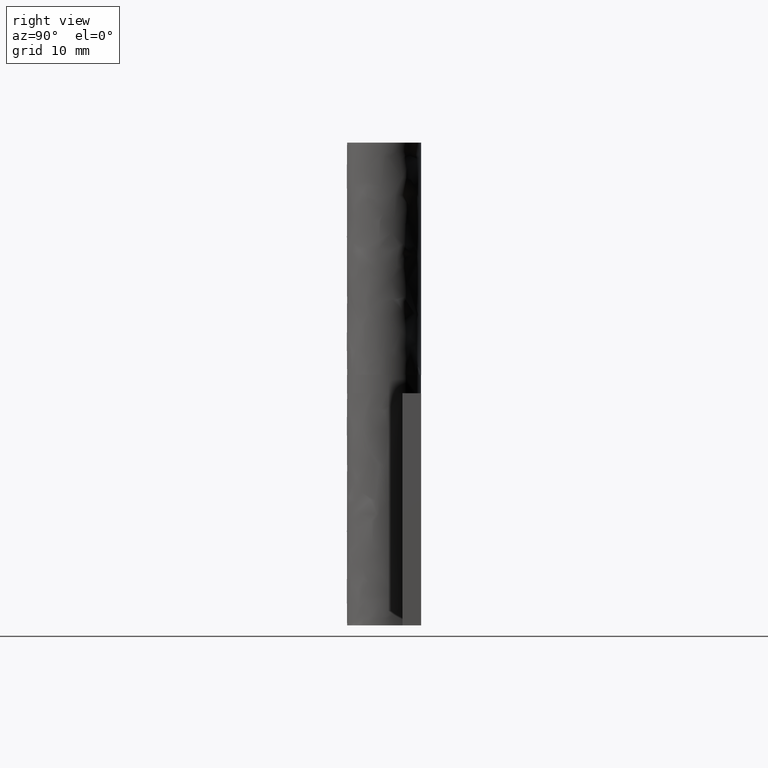
[diagram: clean part render]
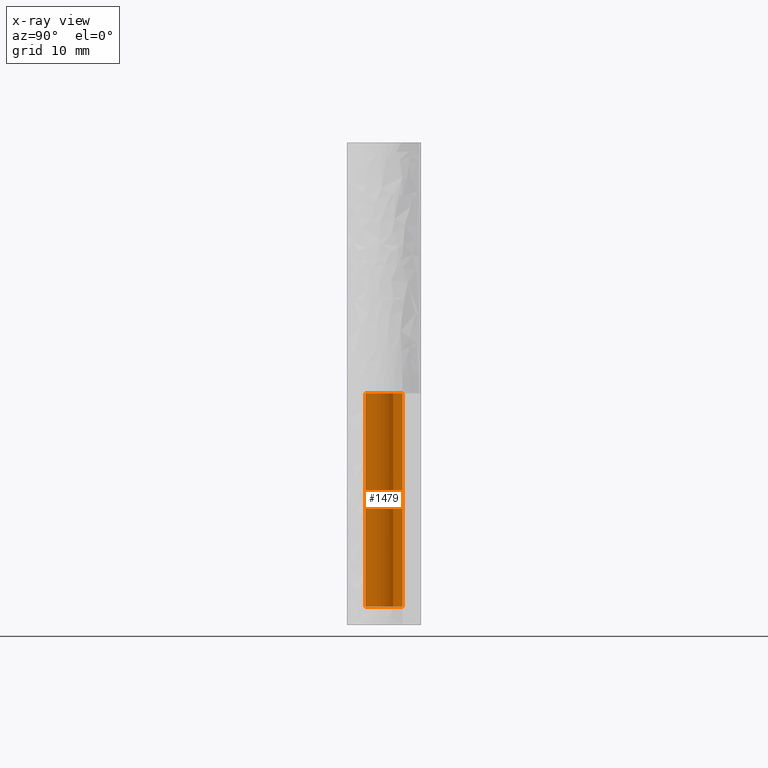
[diagram: x-ray — body ghosted, one internal face saturated and labeled with its STEP entity id]
A machine part, right view, then the same camera in x-ray: the body is ghosted and one INTERNAL B-rep face — a face not visible from any outside direction — is saturated and labeled: STEP entity #1479.
In plain terms, the highlighted face is a freeform B-spline surface patch.
Its self-contained STEP definition (entity closure, byte-faithful):
#1161=CARTESIAN_POINT('',(-0.000007999999994,3.0,3.0));
#1162=VERTEX_POINT('',#1161);
#1170=CARTESIAN_POINT('',(2.612342474189870,1.475000000000000,3.0));
#1171=VERTEX_POINT('',#1170);
#1172=CARTESIAN_POINT('',(-0.000007999999994,3.0,3.0));
#1173=CARTESIAN_POINT('',(-2.296276913923535,3.000000000000000,3.000000000000000));
#1174=CARTESIAN_POINT('',(-2.895914407743429,0.783406712755587,3.0));
#1175=CARTESIAN_POINT('',(-3.495551901563322,-1.433186574488824,3.000000000000000));
#1176=CARTESIAN_POINT('',(-1.512456346225413,-2.590849281606322,3.0));
#1177=CARTESIAN_POINT('',(0.470639209112498,-3.748511988723821,3.000000000000000));
#1178=CARTESIAN_POINT('',(2.105990282990719,-2.136532525387846,3.0));
#1179=CARTESIAN_POINT('',(3.741341356868943,-0.524553062051871,3.000000000000000));
#1180=CARTESIAN_POINT('',(2.612342474189870,1.474999999999998,3.0));
#1188=(BOUNDED_CURVE()B_SPLINE_CURVE(2,(#1172,#1173,#1174,#1175,#1176,#1177,#1178,#1179,#1180),.UNSPECIFIED.,.F.,.U.)B_SPLINE_CURVE_WITH_KNOTS((3,2,2,2,3),(0.0,0.250000000000000,0.500000000000000,0.750000000000000,1.0),.UNSPECIFIED.)CURVE()GEOMETRIC_REPRESENTATION_ITEM()RATIONAL_B_SPLINE_CURVE((1.0,0.794082983987986,1.0,0.794082983987986,1.0,0.794082983987986,1.0,0.794082983987986,1.0))REPRESENTATION_ITEM(''));
#1189=EDGE_CURVE('',#1162,#1171,#1188,.T.);
#1299=CARTESIAN_POINT('',(2.612342474189870,1.475000000000000,37.500000000000000));
#1300=VERTEX_POINT('',#1299);
#1306=CARTESIAN_POINT('',(-0.000007999999994,3.0,37.500000000000000));
#1307=VERTEX_POINT('',#1306);
#1308=CARTESIAN_POINT('',(2.612342474189869,1.475000000000000,37.500000000000000));
#1309=CARTESIAN_POINT('',(3.741341356868943,-0.524553062051868,37.500000000000000));
#1310=CARTESIAN_POINT('',(2.105990282990721,-2.136532525387845,37.500000000000000));
#1311=CARTESIAN_POINT('',(0.470639209112499,-3.748511988723822,37.500000000000000));
#1312=CARTESIAN_POINT('',(-1.512456346225414,-2.590849281606322,37.500000000000000));
#1313=CARTESIAN_POINT('',(-3.495551901563321,-1.433186574488824,37.500000000000000));
#1314=CARTESIAN_POINT('',(-2.895914407743430,0.783406712755585,37.500000000000000));
#1315=CARTESIAN_POINT('',(-2.296276913923536,3.000000000000000,37.500000000000000));
#1316=CARTESIAN_POINT('',(-0.000007999999994,3.0,37.500000000000000));
#1324=(BOUNDED_CURVE()B_SPLINE_CURVE(2,(#1308,#1309,#1310,#1311,#1312,#1313,#1314,#1315,#1316),.UNSPECIFIED.,.F.,.U.)B_SPLINE_CURVE_WITH_KNOTS((3,2,2,2,3),(0.0,0.250000000000000,0.500000000000000,0.750000000000000,1.0),.UNSPECIFIED.)CURVE()GEOMETRIC_REPRESENTATION_ITEM()RATIONAL_B_SPLINE_CURVE((1.0,0.794082983987986,1.0,0.794082983987986,1.0,0.794082983987986,1.0,0.794082983987986,1.0))REPRESENTATION_ITEM(''));
#1325=EDGE_CURVE('',#1300,#1307,#1324,.T.);
#1398=CARTESIAN_POINT('',(-0.000007999999994,3.0,37.500000000000000));
#1399=CARTESIAN_POINT('',(-0.000007999999994,3.0,3.0));
#1400=QUASI_UNIFORM_CURVE('',1,(#1398,#1399),.UNSPECIFIED.,.F.,.U.);
#1401=EDGE_CURVE('',#1307,#1162,#1400,.T.);
#1442=CARTESIAN_POINT('',(2.612342474189870,1.475000000000000,37.500000000000000));
#1443=CARTESIAN_POINT('',(2.612342474189870,1.475000000000000,3.0));
#1444=QUASI_UNIFORM_CURVE('',1,(#1442,#1443),.UNSPECIFIED.,.F.,.U.);
#1445=EDGE_CURVE('',#1300,#1171,#1444,.T.);
#1451=CARTESIAN_POINT('',(0.078522844923630,2.998971974926671,38.362500000000011));
#1452=CARTESIAN_POINT('',(0.078522844923630,2.998971974926671,2.115937500000001));
#1453=CARTESIAN_POINT('',(-3.581158914601225,3.094804114449778,38.362500000000004));
#1454=CARTESIAN_POINT('',(-3.581158914601225,3.094804114449778,2.115937500000002));
#1455=CARTESIAN_POINT('',(-2.955934123562022,-0.512348272216815,38.362500000000011));
#1456=CARTESIAN_POINT('',(-2.955934123562022,-0.512348272216815,2.115937500000001));
#1457=CARTESIAN_POINT('',(-2.330709332522819,-4.119500658883408,38.362500000000004));
#1458=CARTESIAN_POINT('',(-2.330709332522819,-4.119500658883408,2.115937500000002));
#1459=CARTESIAN_POINT('',(1.083238314740243,-2.797602084214567,38.362500000000011));
#1460=CARTESIAN_POINT('',(1.083238314740243,-2.797602084214567,2.115937500000001));
#1461=CARTESIAN_POINT('',(4.497185962003305,-1.475703509545725,38.362500000000004));
#1462=CARTESIAN_POINT('',(4.497185962003305,-1.475703509545725,2.115937500000002));
#1463=CARTESIAN_POINT('',(2.530166337438666,1.611898825040466,38.362500000000011));
#1464=CARTESIAN_POINT('',(2.530166337438666,1.611898825040466,2.115937500000001));
#1472=(BOUNDED_SURFACE()B_SPLINE_SURFACE(1,2,((#1451,#1453,#1455,#1457,#1459,#1461,#1463),(#1452,#1454,#1456,#1458,#1460,#1462,#1464)),.UNSPECIFIED.,.F.,.F.,.U.)B_SPLINE_SURFACE_WITH_KNOTS((2,2),(3,2,2,3),(0.0,36.246562500000010),(0.0,5.680917608989427,11.361835217978850,17.042752826968279),.UNSPECIFIED.)GEOMETRIC_REPRESENTATION_ITEM()RATIONAL_B_SPLINE_SURFACE(((1.0,0.633830967398710,1.0,0.633830967398710,1.0,0.633830967398710,1.0),(1.0,0.633830967398710,1.0,0.633830967398710,1.0,0.633830967398710,1.0)))REPRESENTATION_ITEM('')SURFACE());
#1473=ORIENTED_EDGE('',*,*,#1189,.F.);
#1474=ORIENTED_EDGE('',*,*,#1401,.F.);
#1475=ORIENTED_EDGE('',*,*,#1325,.F.);
#1476=ORIENTED_EDGE('',*,*,#1445,.T.);
#1477=EDGE_LOOP('',(#1473,#1474,#1475,#1476));
#1478=FACE_OUTER_BOUND('',#1477,.T.);
#1479=ADVANCED_FACE('',(#1478),#1472,.F.);